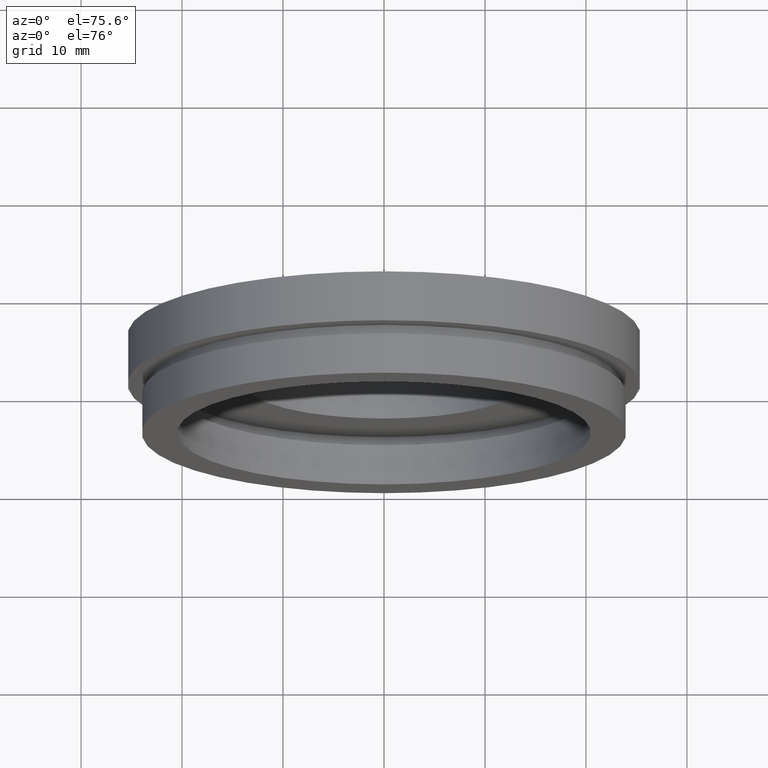
[diagram: clean part render]
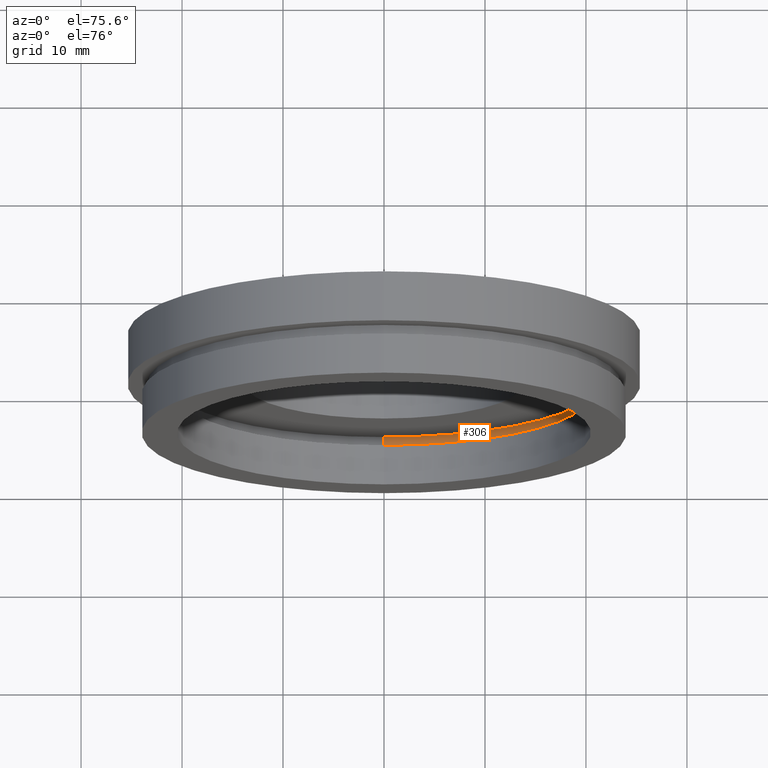
[diagram: same view with one face highlighted and labeled with its STEP entity id]
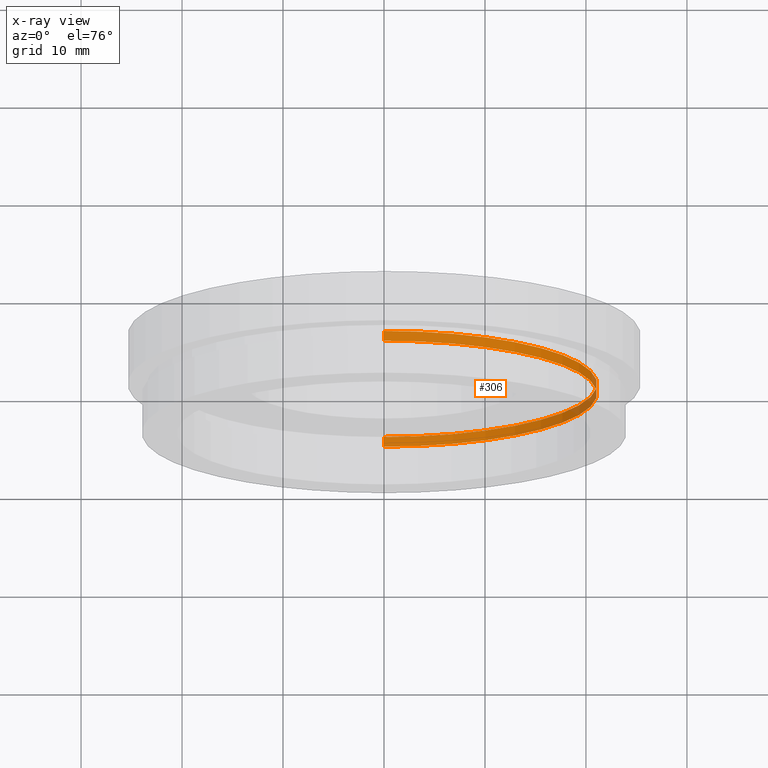
[diagram: x-ray of the same camera — body ghosted, the highlighted face saturated]
A machine part, auxiliary view. The second image highlights one B-rep face of the part: STEP entity #306.
The next image is the same camera in x-ray: the body ghosted, the highlighted face saturated — about 7% of this face is hidden behind the body in this view.
In plain terms, the highlighted cylindrical surface (partial cylindrical patch) has radius 21.1 mm, axis along (-0, 1, -0).
Its self-contained STEP definition (entity closure, byte-faithful):
#19 = ORIENTED_EDGE ( 'NONE', *, *, #276, .T. ) ;
#66 = DIRECTION ( 'NONE',  ( 0.0000000000000000000, 0.0000000000000000000, 1.000000000000000000 ) ) ;
#69 = DIRECTION ( 'NONE',  ( -0.0000000000000000000, 1.000000000000000000, -0.0000000000000000000 ) ) ;
#74 = VECTOR ( 'NONE', #137, 1000.000000000000000 ) ;
#83 = CYLINDRICAL_SURFACE ( 'NONE', #353, 21.10000000000000100 ) ;
#86 = ORIENTED_EDGE ( 'NONE', *, *, #463, .T. ) ;
#116 = CARTESIAN_POINT ( 'NONE',  ( 2.584004746200915400E-015, 5.000000000000000900, -21.10000000000000100 ) ) ;
#134 = CIRCLE ( 'NONE', #586, 21.10000000000000100 ) ;
#136 = VERTEX_POINT ( 'NONE', #232 ) ;
#137 = DIRECTION ( 'NONE',  ( -0.0000000000000000000, 1.000000000000000000, -0.0000000000000000000 ) ) ;
#145 = CIRCLE ( 'NONE', #239, 21.10000000000000100 ) ;
#147 = CARTESIAN_POINT ( 'NONE',  ( 0.0000000000000000000, 5.000000000000000900, 21.10000000000000100 ) ) ;
#153 = DIRECTION ( 'NONE',  ( 0.0000000000000000000, 0.0000000000000000000, 1.000000000000000000 ) ) ;
#163 = EDGE_LOOP ( 'NONE', ( #204, #280, #19, #86 ) ) ;
#189 = VERTEX_POINT ( 'NONE', #116 ) ;
#204 = ORIENTED_EDGE ( 'NONE', *, *, #374, .F. ) ;
#215 = CARTESIAN_POINT ( 'NONE',  ( 0.0000000000000000000, 5.000000000000000900, 0.0000000000000000000 ) ) ;
#232 = CARTESIAN_POINT ( 'NONE',  ( 0.0000000000000000000, 4.000000000000000000, 21.10000000000000100 ) ) ;
#239 = AXIS2_PLACEMENT_3D ( 'NONE', #291, #373, #66 ) ;
#250 = LINE ( 'NONE', #375, #74 ) ;
#276 = EDGE_CURVE ( 'NONE', #136, #397, #438, .T. ) ;
#280 = ORIENTED_EDGE ( 'NONE', *, *, #551, .F. ) ;
#291 = CARTESIAN_POINT ( 'NONE',  ( 0.0000000000000000000, 4.000000000000000000, 0.0000000000000000000 ) ) ;
#306 = ADVANCED_FACE ( 'NONE', ( #448 ), #83, .F. ) ;
#326 = VERTEX_POINT ( 'NONE', #328 ) ;
#328 = CARTESIAN_POINT ( 'NONE',  ( 2.584004746200915400E-015, 4.000000000000000000, -21.10000000000000100 ) ) ;
#353 = AXIS2_PLACEMENT_3D ( 'NONE', #537, #516, #153 ) ;
#373 = DIRECTION ( 'NONE',  ( -0.0000000000000000000, 1.000000000000000000, -0.0000000000000000000 ) ) ;
#374 = EDGE_CURVE ( 'NONE', #326, #189, #250, .T. ) ;
#375 = CARTESIAN_POINT ( 'NONE',  ( 2.584004746200915400E-015, 17.41929831819392000, -21.10000000000000100 ) ) ;
#390 = CARTESIAN_POINT ( 'NONE',  ( 0.0000000000000000000, 17.41929831819392000, 21.10000000000000100 ) ) ;
#397 = VERTEX_POINT ( 'NONE', #147 ) ;
#438 = LINE ( 'NONE', #390, #538 ) ;
#448 = FACE_OUTER_BOUND ( 'NONE', #163, .T. ) ;
#463 = EDGE_CURVE ( 'NONE', #397, #189, #134, .T. ) ;
#516 = DIRECTION ( 'NONE',  ( -0.0000000000000000000, 1.000000000000000000, -0.0000000000000000000 ) ) ;
#537 = CARTESIAN_POINT ( 'NONE',  ( 0.0000000000000000000, 17.41929831819392000, 0.0000000000000000000 ) ) ;
#538 = VECTOR ( 'NONE', #69, 1000.000000000000000 ) ;
#551 = EDGE_CURVE ( 'NONE', #136, #326, #145, .T. ) ;
#566 = DIRECTION ( 'NONE',  ( 0.0000000000000000000, 0.0000000000000000000, 1.000000000000000000 ) ) ;
#586 = AXIS2_PLACEMENT_3D ( 'NONE', #215, #606, #566 ) ;
#606 = DIRECTION ( 'NONE',  ( -0.0000000000000000000, 1.000000000000000000, -0.0000000000000000000 ) ) ;